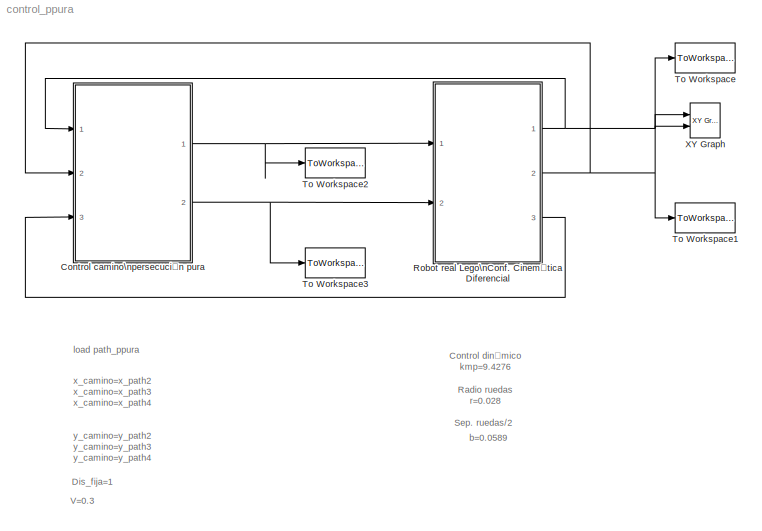
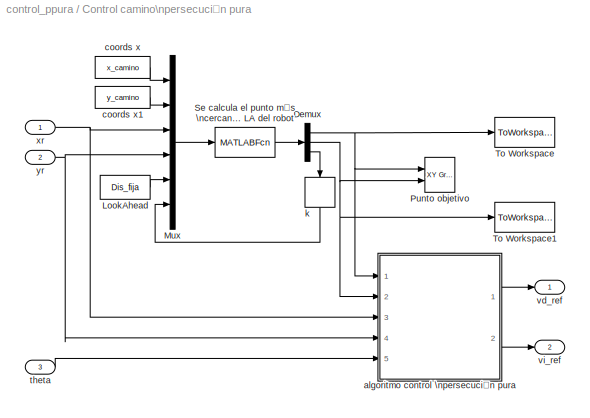
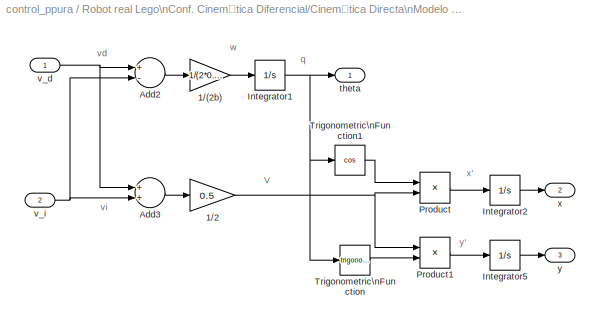
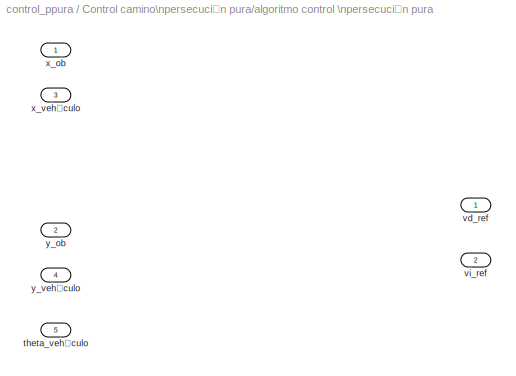
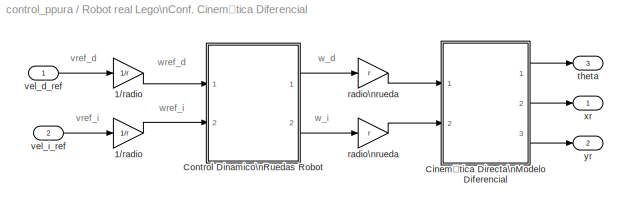
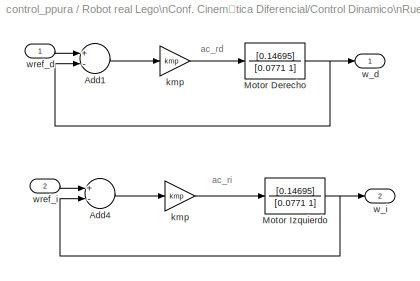
MODEL control_ppura
KIND model
BLOCK [SubSystem] Control camino\npersecución pura
  FunctionWithSeparateData = off
  MaskHideContents = off
  MinAlgLoopOccurrences = off
  Opaque = off
  Ports = [3, 2]
  PropExecContextOutsideSubsystem = off
  RTWSystemCode = Auto
  RequestExecContextInheritance = off
  SID = 99
BLOCK [Demux] Control camino\npersecución pura/Demux
  DisplayOption = bar
  Outputs = 3
  Ports = [1, 3]
  SID = 126
BLOCK [Constant] Control camino\npersecución pura/LookAhead
  SID = 128
  Value = Dis_fija
BLOCK [Mux] Control camino\npersecución pura/Mux
  DisplayOption = bar
  Inputs = 6
  Ports = [6, 1]
  SID = 130
BLOCK [Reference] Control camino\npersecución pura/Punto objetivo  REF=simulink/Sinks/XY Graph
  FunctionWithSeparateData = off
  GeneratePreprocessorConditionals = off
  Ports = [2]
  RTWMemSecDataConstants = Inherit from model
  RTWMemSecDataInternal = Inherit from model
  RTWMemSecDataParameters = Inherit from model
  RTWMemSecFuncExecute = Inherit from model
  RTWMemSecFuncInitTerm = Inherit from model
  SID = 131
  ShowPortLabels = FromPortIcon
  SourceBlock = simulink/Sinks/XY Graph
  SourceType = XY scope.
  SystemSampleTime = -1
  st = -1
  xmax = 10
  xmin = -10
  ymax = 10
  ymin = -10
BLOCK [MATLABFcn] Control camino\npersecución pura/Se calcula el punto más \ncercano que está a una \ndistancia LA del robot
  MATLABFcn = calcula_indice
  OutputDimensions = 3
  Ports = [1, 1]
  SID = 132
BLOCK [ToWorkspace] Control camino\npersecución pura/To Workspace
  MaxDataPoints = inf
  Ports = [1]
  SID = 142
  SampleTime = -1
  SaveFormat = Array
  VariableName = xob
BLOCK [ToWorkspace] Control camino\npersecución pura/To Workspace1
  MaxDataPoints = inf
  Ports = [1]
  SID = 143
  SampleTime = -1
  SaveFormat = Array
  VariableName = yob
BLOCK [SubSystem] Control camino\npersecución pura/algoritmo control \npersecución pura
  FunctionWithSeparateData = off
  MaskHideContents = off
  MinAlgLoopOccurrences = off
  Opaque = off
  Ports = [5, 2]
  PropExecContextOutsideSubsystem = off
  RTWSystemCode = Auto
  RequestExecContextInheritance = off
  SID = 107
BLOCK [Inport] Control camino\npersecución pura/algoritmo control \npersecución pura/theta_vehículo
  IconDisplay = Port number
  Port = 5
  SID = 112
BLOCK [Outport] Control camino\npersecución pura/algoritmo control \npersecución pura/vd_ref
  IconDisplay = Port number
  SID = 124
BLOCK [Outport] Control camino\npersecución pura/algoritmo control \npersecución pura/vi_ref
  IconDisplay = Port number
  Port = 2
  SID = 125
BLOCK [Inport] Control camino\npersecución pura/algoritmo control \npersecución pura/x_ob
  IconDisplay = Port number
  SID = 108
BLOCK [Inport] Control camino\npersecución pura/algoritmo control \npersecución pura/x_vehículo
  IconDisplay = Port number
  Port = 3
  SID = 110
BLOCK [Inport] Control camino\npersecución pura/algoritmo control \npersecución pura/y_ob
  IconDisplay = Port number
  Port = 2
  SID = 109
BLOCK [Inport] Control camino\npersecución pura/algoritmo control \npersecución pura/y_vehículo
  IconDisplay = Port number
  Port = 4
  SID = 111
BLOCK [Constant] Control camino\npersecución pura/coords x
  SID = 135
  Value = x_camino
BLOCK [Constant] Control camino\npersecución pura/coords x1
  SID = 136
  Value = y_camino
BLOCK [Memory] Control camino\npersecución pura/k
  SID = 137
  X0 = 1
BLOCK [Inport] Control camino\npersecución pura/theta
  IconDisplay = Port number
  Port = 3
  SID = 102
BLOCK [Outport] Control camino\npersecución pura/vd_ref
  IconDisplay = Port number
  SID = 140
BLOCK [Outport] Control camino\npersecución pura/vi_ref
  IconDisplay = Port number
  Port = 2
  SID = 141
BLOCK [Inport] Control camino\npersecución pura/xr
  IconDisplay = Port number
  SID = 100
BLOCK [Inport] Control camino\npersecución pura/yr
  IconDisplay = Port number
  Port = 2
  SID = 101
BLOCK [SubSystem] Robot real Lego\nConf. Cinemática Diferencial
  FunctionWithSeparateData = off
  MaskHideContents = off
  MinAlgLoopOccurrences = off
  Opaque = off
  Ports = [2, 3]
  PropExecContextOutsideSubsystem = off
  RTWSystemCode = Auto
  RequestExecContextInheritance = off
  SID = 39
BLOCK [Gain] Robot real Lego\nConf. Cinemática Diferencial/1//radio
  Gain = 1/r
  OutDataTypeStr = Inherit: Inherit via internal rule
  ParamDataTypeStr = Inherit: Inherit via internal rule
  SID = 42
  SaturateOnIntegerOverflow = off
BLOCK [Gain] Robot real Lego\nConf. Cinemática Diferencial/1//radio 
  Gain = 1/r
  OutDataTypeStr = Inherit: Inherit via internal rule
  ParamDataTypeStr = Inherit: Inherit via internal rule
  SID = 43
  SaturateOnIntegerOverflow = off
BLOCK [SubSystem] Robot real Lego\nConf. Cinemática Diferencial/Cinemática Directa\nModelo Diferencial
  FunctionWithSeparateData = off
  MaskHideContents = off
  MinAlgLoopOccurrences = off
  Opaque = off
  Ports = [2, 3]
  PropExecContextOutsideSubsystem = off
  RTWSystemCode = Auto
  RequestExecContextInheritance = off
  SID = 44
BLOCK [Gain] Robot real Lego\nConf. Cinemática Diferencial/Cinemática Directa\nModelo Diferencial/1//(2b)
  Gain = 1/(2*0.0589)
  OutDataTypeStr = Inherit: Inherit via internal rule
  ParamDataTypeStr = Inherit: Inherit via internal rule
  SID = 47
  SaturateOnIntegerOverflow = off
BLOCK [Gain] Robot real Lego\nConf. Cinemática Diferencial/Cinemática Directa\nModelo Diferencial/1//2
  Gain = 0.5
  OutDataTypeStr = Inherit: Inherit via internal rule
  ParamDataTypeStr = Inherit: Inherit via internal rule
  SID = 48
  SaturateOnIntegerOverflow = off
BLOCK [Sum] Robot real Lego\nConf. Cinemática Diferencial/Cinemática Directa\nModelo Diferencial/Add2
  InputSameDT = off
  Inputs = +-
  OutDataTypeStr = Inherit: Inherit via internal rule
  Ports = [2, 1]
  SID = 49
  SaturateOnIntegerOverflow = off
BLOCK [Sum] Robot real Lego\nConf. Cinemática Diferencial/Cinemática Directa\nModelo Diferencial/Add3
  InputSameDT = off
  OutDataTypeStr = Inherit: Inherit via internal rule
  Ports = [2, 1]
  SID = 50
  SaturateOnIntegerOverflow = off
BLOCK [Integrator] Robot real Lego\nConf. Cinemática Diferencial/Cinemática Directa\nModelo Diferencial/Integrator1
  InitialCondition = pi/4
  Ports = [1, 1]
  SID = 51
BLOCK [Integrator] Robot real Lego\nConf. Cinemática Diferencial/Cinemática Directa\nModelo Diferencial/Integrator2
  Ports = [1, 1]
  SID = 52
BLOCK [Integrator] Robot real Lego\nConf. Cinemática Diferencial/Cinemática Directa\nModelo Diferencial/Integrator5
  Ports = [1, 1]
  SID = 53
BLOCK [Product] Robot real Lego\nConf. Cinemática Diferencial/Cinemática Directa\nModelo Diferencial/Product
  InputSameDT = off
  OutDataTypeStr = Inherit: Inherit via internal rule
  Ports = [2, 1]
  SID = 54
  SaturateOnIntegerOverflow = off
BLOCK [Product] Robot real Lego\nConf. Cinemática Diferencial/Cinemática Directa\nModelo Diferencial/Product1
  InputSameDT = off
  OutDataTypeStr = Inherit: Inherit via internal rule
  Ports = [2, 1]
  SID = 55
  SaturateOnIntegerOverflow = off
BLOCK [Trigonometry] Robot real Lego\nConf. Cinemática Diferencial/Cinemática Directa\nModelo Diferencial/Trigonometric\nFunction
  Ports = [1, 1]
  SID = 56
BLOCK [Trigonometry] Robot real Lego\nConf. Cinemática Diferencial/Cinemática Directa\nModelo Diferencial/Trigonometric\nFunction1
  Operator = cos
  Ports = [1, 1]
  SID = 57
BLOCK [Outport] Robot real Lego\nConf. Cinemática Diferencial/Cinemática Directa\nModelo Diferencial/theta
  IconDisplay = Port number
  SID = 58
BLOCK [Inport] Robot real Lego\nConf. Cinemática Diferencial/Cinemática Directa\nModelo Diferencial/v_d
  IconDisplay = Port number
  SID = 45
BLOCK [Inport] Robot real Lego\nConf. Cinemática Diferencial/Cinemática Directa\nModelo Diferencial/v_i
  IconDisplay = Port number
  Port = 2
  SID = 46
BLOCK [Outport] Robot real Lego\nConf. Cinemática Diferencial/Cinemática Directa\nModelo Diferencial/x
  IconDisplay = Port number
  Port = 2
  SID = 59
BLOCK [Outport] Robot real Lego\nConf. Cinemática Diferencial/Cinemática Directa\nModelo Diferencial/y
  IconDisplay = Port number
  Port = 3
  SID = 60
BLOCK [SubSystem] Robot real Lego\nConf. Cinemática Diferencial/Control Dinamico\nRuedas Robot
  FunctionWithSeparateData = off
  MaskHideContents = off
  MinAlgLoopOccurrences = off
  Opaque = off
  Ports = [2, 2]
  PropExecContextOutsideSubsystem = off
  RTWSystemCode = Auto
  RequestExecContextInheritance = off
  SID = 61
BLOCK [Sum] Robot real Lego\nConf. Cinemática Diferencial/Control Dinamico\nRuedas Robot/Add1
  InputSameDT = off
  Inputs = +-
  OutDataTypeStr = Inherit: Inherit via internal rule
  Ports = [2, 1]
  SID = 64
  SaturateOnIntegerOverflow = off
BLOCK [Sum] Robot real Lego\nConf. Cinemática Diferencial/Control Dinamico\nRuedas Robot/Add4
  InputSameDT = off
  Inputs = +-
  OutDataTypeStr = Inherit: Inherit via internal rule
  Ports = [2, 1]
  SID = 65
  SaturateOnIntegerOverflow = off
BLOCK [TransferFcn] Robot real Lego\nConf. Cinemática Diferencial/Control Dinamico\nRuedas Robot/Motor Derecho
  Denominator = [0.0771 1]
  Numerator = [0.14695]
  SID = 66
BLOCK [TransferFcn] Robot real Lego\nConf. Cinemática Diferencial/Control Dinamico\nRuedas Robot/Motor Izquierdo
  Denominator = [0.0771 1]
  Numerator = [0.14695]
  SID = 67
BLOCK [Gain] Robot real Lego\nConf. Cinemática Diferencial/Control Dinamico\nRuedas Robot/kmp
  Gain = kmp
  OutDataTypeStr = Inherit: Inherit via internal rule
  ParamDataTypeStr = Inherit: Inherit via internal rule
  SID = 68
  SaturateOnIntegerOverflow = off
BLOCK [Gain] Robot real Lego\nConf. Cinemática Diferencial/Control Dinamico\nRuedas Robot/kmp 
  Gain = kmp
  OutDataTypeStr = Inherit: Inherit via internal rule
  ParamDataTypeStr = Inherit: Inherit via internal rule
  SID = 69
  SaturateOnIntegerOverflow = off
BLOCK [Outport] Robot real Lego\nConf. Cinemática Diferencial/Control Dinamico\nRuedas Robot/w_d
  IconDisplay = Port number
  SID = 70
BLOCK [Outport] Robot real Lego\nConf. Cinemática Diferencial/Control Dinamico\nRuedas Robot/w_i
  IconDisplay = Port number
  Port = 2
  SID = 71
BLOCK [Inport] Robot real Lego\nConf. Cinemática Diferencial/Control Dinamico\nRuedas Robot/wref_d
  IconDisplay = Port number
  SID = 62
BLOCK [Inport] Robot real Lego\nConf. Cinemática Diferencial/Control Dinamico\nRuedas Robot/wref_i
  IconDisplay = Port number
  Port = 2
  SID = 63
BLOCK [Gain] Robot real Lego\nConf. Cinemática Diferencial/radio\nrueda
  Gain = r
  OutDataTypeStr = Inherit: Inherit via internal rule
  ParamDataTypeStr = Inherit: Inherit via internal rule
  SID = 72
  SaturateOnIntegerOverflow = off
BLOCK [Gain] Robot real Lego\nConf. Cinemática Diferencial/radio\nrueda 
  Gain = r
  OutDataTypeStr = Inherit: Inherit via internal rule
  ParamDataTypeStr = Inherit: Inherit via internal rule
  SID = 73
  SaturateOnIntegerOverflow = off
BLOCK [Outport] Robot real Lego\nConf. Cinemática Diferencial/theta
  IconDisplay = Port number
  Port = 3
  SID = 76
BLOCK [Inport] Robot real Lego\nConf. Cinemática Diferencial/vel_d_ref
  IconDisplay = Port number
  SID = 40
BLOCK [Inport] Robot real Lego\nConf. Cinemática Diferencial/vel_i_ref
  IconDisplay = Port number
  Port = 2
  SID = 41
BLOCK [Outport] Robot real Lego\nConf. Cinemática Diferencial/xr
  IconDisplay = Port number
  SID = 74
BLOCK [Outport] Robot real Lego\nConf. Cinemática Diferencial/yr
  IconDisplay = Port number
  Port = 2
  SID = 75
BLOCK [ToWorkspace] To Workspace
  MaxDataPoints = inf
  Ports = [1]
  SID = 77
  SampleTime = -1
  SaveFormat = Array
  VariableName = xr
BLOCK [ToWorkspace] To Workspace1
  MaxDataPoints = inf
  Ports = [1]
  SID = 78
  SampleTime = -1
  SaveFormat = Array
  VariableName = yr
BLOCK [ToWorkspace] To Workspace2
  MaxDataPoints = inf
  Ports = [1]
  SID = 79
  SampleTime = -1
  SaveFormat = Array
  VariableName = velorefd
BLOCK [ToWorkspace] To Workspace3
  MaxDataPoints = inf
  Ports = [1]
  SID = 80
  SampleTime = -1
  SaveFormat = Array
  VariableName = velorefi
BLOCK [Reference] XY Graph  REF=simulink/Sinks/XY Graph
  FunctionWithSeparateData = off
  GeneratePreprocessorConditionals = off
  Ports = [2]
  RTWMemSecDataConstants = Inherit from model
  RTWMemSecDataInternal = Inherit from model
  RTWMemSecDataParameters = Inherit from model
  RTWMemSecFuncExecute = Inherit from model
  RTWMemSecFuncInitTerm = Inherit from model
  SID = 81
  ShowPortLabels = FromPortIcon
  SourceBlock = simulink/Sinks/XY Graph
  SourceType = XY scope.
  SystemSampleTime = -1
  st = -1
  xmax = 10
  xmin = -10
  ymax = 10
  ymin = -10
ANNOTATION (root): Control dinámico\nkmp=9.4276
ANNOTATION (root): Dis_fija=1
ANNOTATION (root): Radio ruedas\nr=0.028
ANNOTATION (root): Sep. ruedas/2
ANNOTATION (root): V=0.3
ANNOTATION (root): b=0.0589
ANNOTATION (root): load path_ppura
ANNOTATION (root): x_camino=x_path2\nx_camino=x_path3\nx_camino=x_path4
ANNOTATION (root): y_camino=y_path2\ny_camino=y_path3\ny_camino=y_path4
ANNOTATION Robot real Lego\nConf. Cinemática Diferencial: vref_d
ANNOTATION Robot real Lego\nConf. Cinemática Diferencial: vref_i
ANNOTATION Robot real Lego\nConf. Cinemática Diferencial: w_d
ANNOTATION Robot real Lego\nConf. Cinemática Diferencial: w_i
ANNOTATION Robot real Lego\nConf. Cinemática Diferencial: wref_d
ANNOTATION Robot real Lego\nConf. Cinemática Diferencial: wref_i
ANNOTATION Robot real Lego\nConf. Cinemática Diferencial/Cinemática Directa\nModelo Diferencial: V
ANNOTATION Robot real Lego\nConf. Cinemática Diferencial/Cinemática Directa\nModelo Diferencial: q
ANNOTATION Robot real Lego\nConf. Cinemática Diferencial/Cinemática Directa\nModelo Diferencial: vd
ANNOTATION Robot real Lego\nConf. Cinemática Diferencial/Cinemática Directa\nModelo Diferencial: vi
ANNOTATION Robot real Lego\nConf. Cinemática Diferencial/Cinemática Directa\nModelo Diferencial: w
ANNOTATION Robot real Lego\nConf. Cinemática Diferencial/Cinemática Directa\nModelo Diferencial: x'
ANNOTATION Robot real Lego\nConf. Cinemática Diferencial/Cinemática Directa\nModelo Diferencial: y'
ANNOTATION Robot real Lego\nConf. Cinemática Diferencial/Control Dinamico\nRuedas Robot: ac_rd
ANNOTATION Robot real Lego\nConf. Cinemática Diferencial/Control Dinamico\nRuedas Robot: ac_ri
NET Control camino\npersecución pura/Demux:1 -> Control camino\npersecución pura/Punto objetivo:1, Control camino\npersecución pura/To Workspace:1, Control camino\npersecución pura/algoritmo control \npersecución pura:1
NET Control camino\npersecución pura/Demux:2 -> Control camino\npersecución pura/Punto objetivo:2, Control camino\npersecución pura/To Workspace1:1, Control camino\npersecución pura/algoritmo control \npersecución pura:2
LINE Control camino\npersecución pura/Demux:3 -> Control camino\npersecución pura/k:1
LINE Control camino\npersecución pura/LookAhead:1 -> Control camino\npersecución pura/Mux:5
LINE Control camino\npersecución pura/Mux:1 -> Control camino\npersecución pura/Se calcula el punto más \ncercano que está a una \ndistancia LA del robot:1
LINE Control camino\npersecución pura/Se calcula el punto más \ncercano que está a una \ndistancia LA del robot:1 -> Control camino\npersecución pura/Demux:1
LINE Control camino\npersecución pura/algoritmo control \npersecución pura:1 -> Control camino\npersecución pura/vd_ref:1
LINE Control camino\npersecución pura/algoritmo control \npersecución pura:2 -> Control camino\npersecución pura/vi_ref:1
LINE Control camino\npersecución pura/coords x1:1 -> Control camino\npersecución pura/Mux:2
LINE Control camino\npersecución pura/coords x:1 -> Control camino\npersecución pura/Mux:1
LINE Control camino\npersecución pura/k:1 -> Control camino\npersecución pura/Mux:6
LINE Control camino\npersecución pura/theta:1 -> Control camino\npersecución pura/algoritmo control \npersecución pura:5
NET Control camino\npersecución pura/xr:1 -> Control camino\npersecución pura/Mux:3, Control camino\npersecución pura/algoritmo control \npersecución pura:3
NET Control camino\npersecución pura/yr:1 -> Control camino\npersecución pura/Mux:4, Control camino\npersecución pura/algoritmo control \npersecución pura:4
NET Control camino\npersecución pura:1 -> Robot real Lego\nConf. Cinemática Diferencial:1, To Workspace2:1
NET Control camino\npersecución pura:2 -> Robot real Lego\nConf. Cinemática Diferencial:2, To Workspace3:1
LINE Robot real Lego\nConf. Cinemática Diferencial/1//radio :1 -> Robot real Lego\nConf. Cinemática Diferencial/Control Dinamico\nRuedas Robot:2
LINE Robot real Lego\nConf. Cinemática Diferencial/1//radio:1 -> Robot real Lego\nConf. Cinemática Diferencial/Control Dinamico\nRuedas Robot:1
LINE Robot real Lego\nConf. Cinemática Diferencial/Cinemática Directa\nModelo Diferencial/1//(2b):1 -> Robot real Lego\nConf. Cinemática Diferencial/Cinemática Directa\nModelo Diferencial/Integrator1:1
NET Robot real Lego\nConf. Cinemática Diferencial/Cinemática Directa\nModelo Diferencial/1//2:1 -> Robot real Lego\nConf. Cinemática Diferencial/Cinemática Directa\nModelo Diferencial/Product1:1, Robot real Lego\nConf. Cinemática Diferencial/Cinemática Directa\nModelo Diferencial/Product:2
LINE Robot real Lego\nConf. Cinemática Diferencial/Cinemática Directa\nModelo Diferencial/Add2:1 -> Robot real Lego\nConf. Cinemática Diferencial/Cinemática Directa\nModelo Diferencial/1//(2b):1
LINE Robot real Lego\nConf. Cinemática Diferencial/Cinemática Directa\nModelo Diferencial/Add3:1 -> Robot real Lego\nConf. Cinemática Diferencial/Cinemática Directa\nModelo Diferencial/1//2:1
NET Robot real Lego\nConf. Cinemática Diferencial/Cinemática Directa\nModelo Diferencial/Integrator1:1 -> Robot real Lego\nConf. Cinemática Diferencial/Cinemática Directa\nModelo Diferencial/Trigonometric\nFunction1:1, Robot real Lego\nConf. Cinemática Diferencial/Cinemática Directa\nModelo Diferencial/Trigonometric\nFunction:1, Robot real Lego\nConf. Cinemática Diferencial/Cinemática Directa\nModelo Diferencial/theta:1
LINE Robot real Lego\nConf. Cinemática Diferencial/Cinemática Directa\nModelo Diferencial/Integrator2:1 -> Robot real Lego\nConf. Cinemática Diferencial/Cinemática Directa\nModelo Diferencial/x:1
LINE Robot real Lego\nConf. Cinemática Diferencial/Cinemática Directa\nModelo Diferencial/Integrator5:1 -> Robot real Lego\nConf. Cinemática Diferencial/Cinemática Directa\nModelo Diferencial/y:1
LINE Robot real Lego\nConf. Cinemática Diferencial/Cinemática Directa\nModelo Diferencial/Product1:1 -> Robot real Lego\nConf. Cinemática Diferencial/Cinemática Directa\nModelo Diferencial/Integrator5:1
LINE Robot real Lego\nConf. Cinemática Diferencial/Cinemática Directa\nModelo Diferencial/Product:1 -> Robot real Lego\nConf. Cinemática Diferencial/Cinemática Directa\nModelo Diferencial/Integrator2:1
LINE Robot real Lego\nConf. Cinemática Diferencial/Cinemática Directa\nModelo Diferencial/Trigonometric\nFunction1:1 -> Robot real Lego\nConf. Cinemática Diferencial/Cinemática Directa\nModelo Diferencial/Product:1
LINE Robot real Lego\nConf. Cinemática Diferencial/Cinemática Directa\nModelo Diferencial/Trigonometric\nFunction:1 -> Robot real Lego\nConf. Cinemática Diferencial/Cinemática Directa\nModelo Diferencial/Product1:2
NET Robot real Lego\nConf. Cinemática Diferencial/Cinemática Directa\nModelo Diferencial/v_d:1 -> Robot real Lego\nConf. Cinemática Diferencial/Cinemática Directa\nModelo Diferencial/Add2:1, Robot real Lego\nConf. Cinemática Diferencial/Cinemática Directa\nModelo Diferencial/Add3:1
NET Robot real Lego\nConf. Cinemática Diferencial/Cinemática Directa\nModelo Diferencial/v_i:1 -> Robot real Lego\nConf. Cinemática Diferencial/Cinemática Directa\nModelo Diferencial/Add2:2, Robot real Lego\nConf. Cinemática Diferencial/Cinemática Directa\nModelo Diferencial/Add3:2
LINE Robot real Lego\nConf. Cinemática Diferencial/Cinemática Directa\nModelo Diferencial:1 -> Robot real Lego\nConf. Cinemática Diferencial/theta:1
LINE Robot real Lego\nConf. Cinemática Diferencial/Cinemática Directa\nModelo Diferencial:2 -> Robot real Lego\nConf. Cinemática Diferencial/xr:1
LINE Robot real Lego\nConf. Cinemática Diferencial/Cinemática Directa\nModelo Diferencial:3 -> Robot real Lego\nConf. Cinemática Diferencial/yr:1
LINE Robot real Lego\nConf. Cinemática Diferencial/Control Dinamico\nRuedas Robot/Add1:1 -> Robot real Lego\nConf. Cinemática Diferencial/Control Dinamico\nRuedas Robot/kmp:1
LINE Robot real Lego\nConf. Cinemática Diferencial/Control Dinamico\nRuedas Robot/Add4:1 -> Robot real Lego\nConf. Cinemática Diferencial/Control Dinamico\nRuedas Robot/kmp :1
NET Robot real Lego\nConf. Cinemática Diferencial/Control Dinamico\nRuedas Robot/Motor Derecho:1 -> Robot real Lego\nConf. Cinemática Diferencial/Control Dinamico\nRuedas Robot/Add1:2, Robot real Lego\nConf. Cinemática Diferencial/Control Dinamico\nRuedas Robot/w_d:1
NET Robot real Lego\nConf. Cinemática Diferencial/Control Dinamico\nRuedas Robot/Motor Izquierdo:1 -> Robot real Lego\nConf. Cinemática Diferencial/Control Dinamico\nRuedas Robot/Add4:2, Robot real Lego\nConf. Cinemática Diferencial/Control Dinamico\nRuedas Robot/w_i:1
LINE Robot real Lego\nConf. Cinemática Diferencial/Control Dinamico\nRuedas Robot/kmp :1 -> Robot real Lego\nConf. Cinemática Diferencial/Control Dinamico\nRuedas Robot/Motor Izquierdo:1
LINE Robot real Lego\nConf. Cinemática Diferencial/Control Dinamico\nRuedas Robot/kmp:1 -> Robot real Lego\nConf. Cinemática Diferencial/Control Dinamico\nRuedas Robot/Motor Derecho:1
LINE Robot real Lego\nConf. Cinemática Diferencial/Control Dinamico\nRuedas Robot/wref_d:1 -> Robot real Lego\nConf. Cinemática Diferencial/Control Dinamico\nRuedas Robot/Add1:1
LINE Robot real Lego\nConf. Cinemática Diferencial/Control Dinamico\nRuedas Robot/wref_i:1 -> Robot real Lego\nConf. Cinemática Diferencial/Control Dinamico\nRuedas Robot/Add4:1
LINE Robot real Lego\nConf. Cinemática Diferencial/Control Dinamico\nRuedas Robot:1 -> Robot real Lego\nConf. Cinemática Diferencial/radio\nrueda:1
LINE Robot real Lego\nConf. Cinemática Diferencial/Control Dinamico\nRuedas Robot:2 -> Robot real Lego\nConf. Cinemática Diferencial/radio\nrueda :1
LINE Robot real Lego\nConf. Cinemática Diferencial/radio\nrueda :1 -> Robot real Lego\nConf. Cinemática Diferencial/Cinemática Directa\nModelo Diferencial:2
LINE Robot real Lego\nConf. Cinemática Diferencial/radio\nrueda:1 -> Robot real Lego\nConf. Cinemática Diferencial/Cinemática Directa\nModelo Diferencial:1
LINE Robot real Lego\nConf. Cinemática Diferencial/vel_d_ref:1 -> Robot real Lego\nConf. Cinemática Diferencial/1//radio:1
LINE Robot real Lego\nConf. Cinemática Diferencial/vel_i_ref:1 -> Robot real Lego\nConf. Cinemática Diferencial/1//radio :1
NET Robot real Lego\nConf. Cinemática Diferencial:1 -> Control camino\npersecución pura:1, To Workspace:1, XY Graph:1
NET Robot real Lego\nConf. Cinemática Diferencial:2 -> Control camino\npersecución pura:2, To Workspace1:1, XY Graph:2
LINE Robot real Lego\nConf. Cinemática Diferencial:3 -> Control camino\npersecución pura:3
note: NET lines group one-source signal fan-out (src -> all destinations, sorted); 1:1 wires keep LINE
